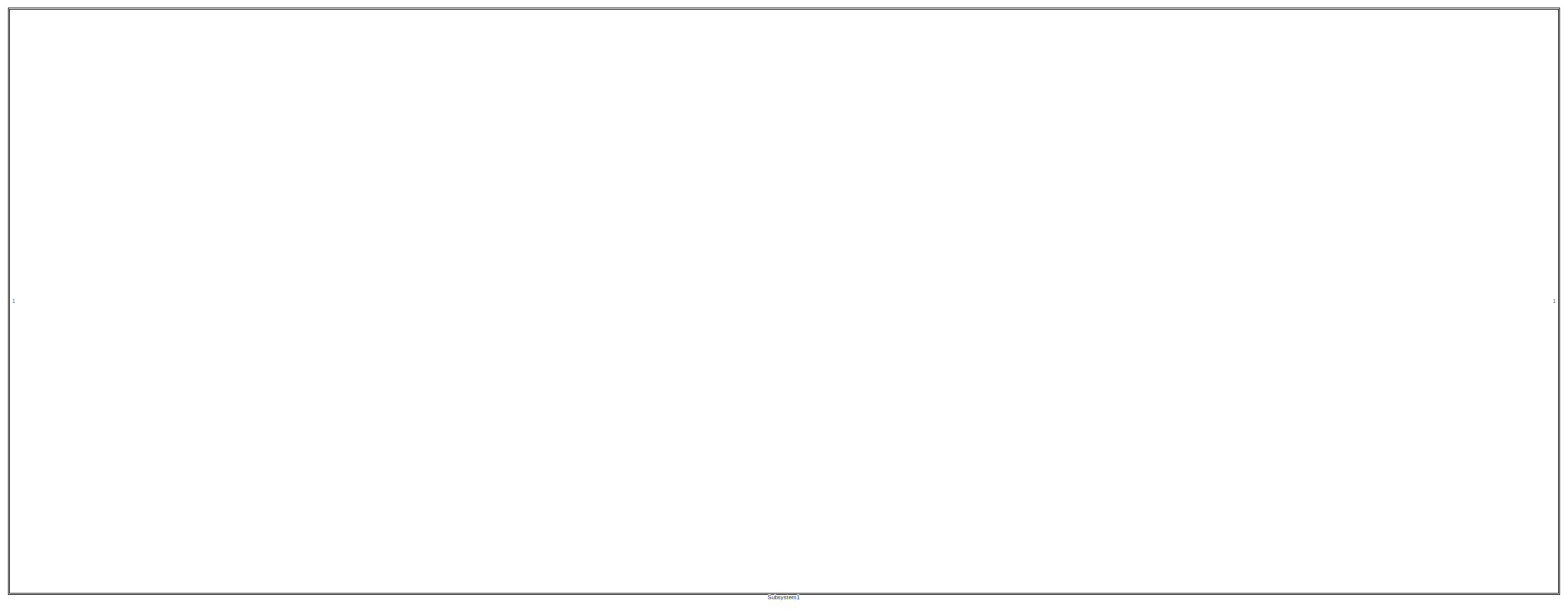
[diagram: root canvas - part 1/1, most of the canvas]
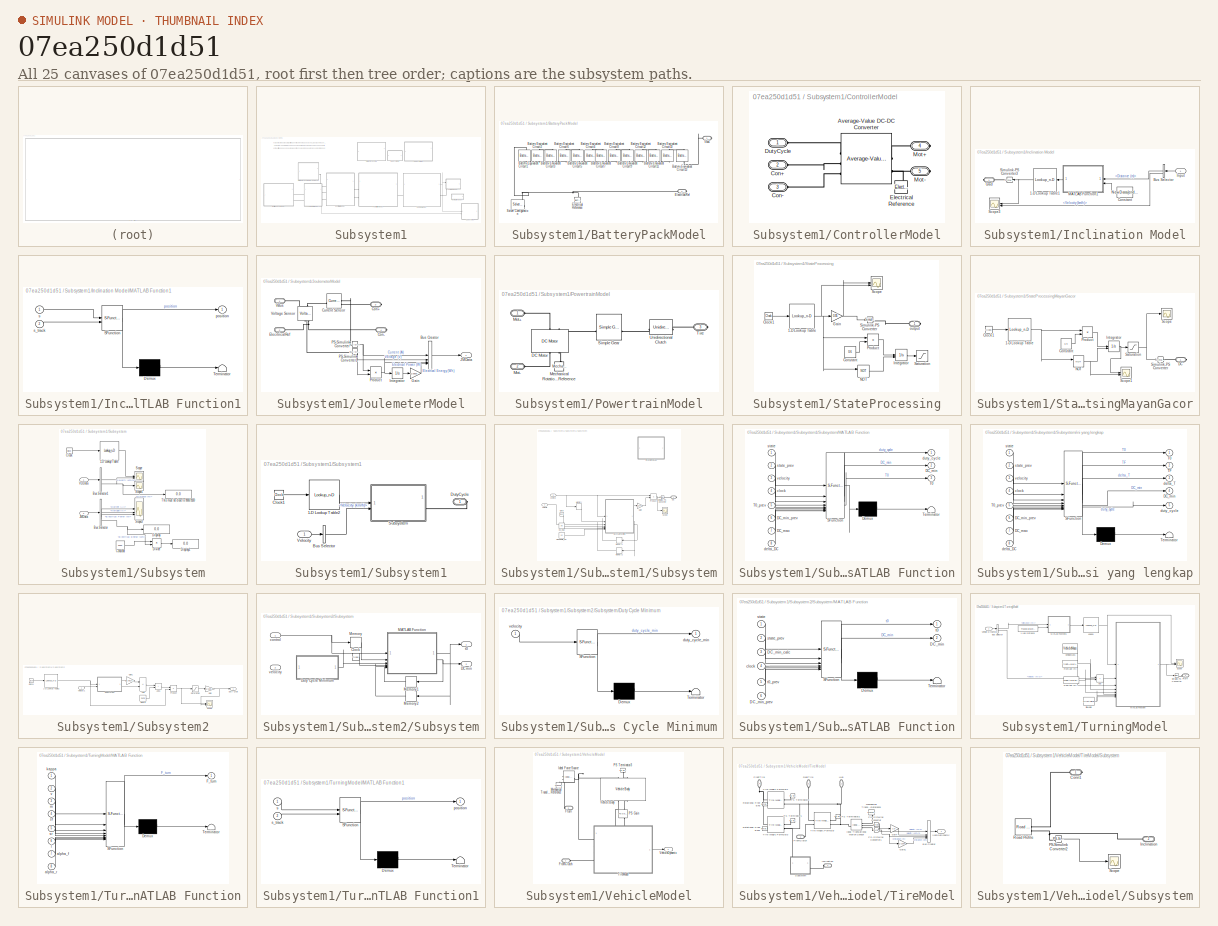
[diagram: thumbnail index - all 25 canvases of the model, root first then tree order]
MODEL slx_07ea250d1d51
KIND model
CONFIG AbsTol = auto
CONFIG EnableMultiTasking = off
CONFIG FixedStep = auto
CONFIG MaxStep = 0.1
CONFIG MinStep = auto
CONFIG RelTol = 1e-3
CONFIG SampleTimeConstraint = Unconstrained
CONFIG SolverName = ode23t
CONFIG StartTime = 0.0
CONFIG StopTime = finalatt{end,1}
BLOCK [SubSystem] Subsystem1
BLOCK [SubSystem] Subsystem1/BatteryPackModel
BLOCK [Reference] Subsystem1/BatteryPackModel/Battery Equivalent Circuit1  REF=batt_lib/Cells/Battery Equivalent
Circuit
  AttributesFormatString = Molicel:INR_21700_P45B
  NameLocation = left
  SourceBlock = batt_lib/Cells/Battery Equivalent\nCircuit
  SourceType = Battery Equivalent\nCircuit
  Tag = {'toolbox/physmod/battery/library/m/batt_lib_parts';'Cells/Battery_Equivalent_Circuit/Molicel/INR_21700_P45B.xml'}
BLOCK [Reference] Subsystem1/BatteryPackModel/Battery Equivalent Circuit10  REF=batt_lib/Cells/Battery Equivalent
Circuit
  AttributesFormatString = Molicel:INR_21700_P45B
  NameLocation = right
  SourceBlock = batt_lib/Cells/Battery Equivalent\nCircuit
  SourceType = Battery Equivalent\nCircuit
  Tag = {'toolbox/physmod/battery/library/m/batt_lib_parts';'Cells/Battery_Equivalent_Circuit/Molicel/INR_21700_P45B.xml'}
BLOCK [Reference] Subsystem1/BatteryPackModel/Battery Equivalent Circuit11  REF=batt_lib/Cells/Battery Equivalent
Circuit
  AttributesFormatString = Molicel:INR_21700_P45B
  NameLocation = left
  SourceBlock = batt_lib/Cells/Battery Equivalent\nCircuit
  SourceType = Battery Equivalent\nCircuit
  Tag = {'toolbox/physmod/battery/library/m/batt_lib_parts';'Cells/Battery_Equivalent_Circuit/Molicel/INR_21700_P45B.xml'}
BLOCK [Reference] Subsystem1/BatteryPackModel/Battery Equivalent Circuit12  REF=batt_lib/Cells/Battery Equivalent
Circuit
  AttributesFormatString = Molicel:INR_21700_P45B
  NameLocation = right
  SourceBlock = batt_lib/Cells/Battery Equivalent\nCircuit
  SourceType = Battery Equivalent\nCircuit
  Tag = {'toolbox/physmod/battery/library/m/batt_lib_parts';'Cells/Battery_Equivalent_Circuit/Molicel/INR_21700_P45B.xml'}
BLOCK [Reference] Subsystem1/BatteryPackModel/Battery Equivalent Circuit13  REF=batt_lib/Cells/Battery Equivalent
Circuit
  AttributesFormatString = Molicel:INR_21700_P45B
  NameLocation = left
  SourceBlock = batt_lib/Cells/Battery Equivalent\nCircuit
  SourceType = Battery Equivalent\nCircuit
  Tag = {'toolbox/physmod/battery/library/m/batt_lib_parts';'Cells/Battery_Equivalent_Circuit/Molicel/INR_21700_P45B.xml'}
BLOCK [Reference] Subsystem1/BatteryPackModel/Battery Equivalent Circuit2  REF=batt_lib/Cells/Battery Equivalent
Circuit
  AttributesFormatString = Molicel:INR_21700_P45B
  NameLocation = right
  SourceBlock = batt_lib/Cells/Battery Equivalent\nCircuit
  SourceType = Battery Equivalent\nCircuit
  Tag = {'toolbox/physmod/battery/library/m/batt_lib_parts';'Cells/Battery_Equivalent_Circuit/Molicel/INR_21700_P45B.xml'}
BLOCK [Reference] Subsystem1/BatteryPackModel/Battery Equivalent Circuit3  REF=batt_lib/Cells/Battery Equivalent
Circuit
  AttributesFormatString = Molicel:INR_21700_P45B
  NameLocation = left
  SourceBlock = batt_lib/Cells/Battery Equivalent\nCircuit
  SourceType = Battery Equivalent\nCircuit
  Tag = {'toolbox/physmod/battery/library/m/batt_lib_parts';'Cells/Battery_Equivalent_Circuit/Molicel/INR_21700_P45B.xml'}
BLOCK [Reference] Subsystem1/BatteryPackModel/Battery Equivalent Circuit4  REF=batt_lib/Cells/Battery Equivalent
Circuit
  AttributesFormatString = Molicel:INR_21700_P45B
  NameLocation = right
  SourceBlock = batt_lib/Cells/Battery Equivalent\nCircuit
  SourceType = Battery Equivalent\nCircuit
  Tag = {'toolbox/physmod/battery/library/m/batt_lib_parts';'Cells/Battery_Equivalent_Circuit/Molicel/INR_21700_P45B.xml'}
BLOCK [Reference] Subsystem1/BatteryPackModel/Battery Equivalent Circuit5  REF=batt_lib/Cells/Battery Equivalent
Circuit
  AttributesFormatString = Molicel:INR_21700_P45B
  NameLocation = left
  SourceBlock = batt_lib/Cells/Battery Equivalent\nCircuit
  SourceType = Battery Equivalent\nCircuit
  Tag = {'toolbox/physmod/battery/library/m/batt_lib_parts';'Cells/Battery_Equivalent_Circuit/Molicel/INR_21700_P45B.xml'}
BLOCK [Reference] Subsystem1/BatteryPackModel/Battery Equivalent Circuit6  REF=batt_lib/Cells/Battery Equivalent
Circuit
  AttributesFormatString = Molicel:INR_21700_P45B
  NameLocation = right
  SourceBlock = batt_lib/Cells/Battery Equivalent\nCircuit
  SourceType = Battery Equivalent\nCircuit
  Tag = {'toolbox/physmod/battery/library/m/batt_lib_parts';'Cells/Battery_Equivalent_Circuit/Molicel/INR_21700_P45B.xml'}
BLOCK [Reference] Subsystem1/BatteryPackModel/Battery Equivalent Circuit7  REF=batt_lib/Cells/Battery Equivalent
Circuit
  AttributesFormatString = Molicel:INR_21700_P45B
  NameLocation = left
  SourceBlock = batt_lib/Cells/Battery Equivalent\nCircuit
  SourceType = Battery Equivalent\nCircuit
  Tag = {'toolbox/physmod/battery/library/m/batt_lib_parts';'Cells/Battery_Equivalent_Circuit/Molicel/INR_21700_P45B.xml'}
BLOCK [Reference] Subsystem1/BatteryPackModel/Battery Equivalent Circuit8  REF=batt_lib/Cells/Battery Equivalent
Circuit
  AttributesFormatString = Molicel:INR_21700_P45B
  NameLocation = right
  SourceBlock = batt_lib/Cells/Battery Equivalent\nCircuit
  SourceType = Battery Equivalent\nCircuit
  Tag = {'toolbox/physmod/battery/library/m/batt_lib_parts';'Cells/Battery_Equivalent_Circuit/Molicel/INR_21700_P45B.xml'}
BLOCK [Reference] Subsystem1/BatteryPackModel/Battery Equivalent Circuit9  REF=batt_lib/Cells/Battery Equivalent
Circuit
  AttributesFormatString = Molicel:INR_21700_P45B
  NameLocation = left
  SourceBlock = batt_lib/Cells/Battery Equivalent\nCircuit
  SourceType = Battery Equivalent\nCircuit
  Tag = {'toolbox/physmod/battery/library/m/batt_lib_parts';'Cells/Battery_Equivalent_Circuit/Molicel/INR_21700_P45B.xml'}
BLOCK [Reference] Subsystem1/BatteryPackModel/Electrical Reference  REF=fl_lib/Electrical/Electrical Elements/Electrical Reference
  NameLocation = right
  SourceBlock = fl_lib/Electrical/Electrical Elements/Electrical Reference
  SourceType = Electrical Reference
BLOCK [PMIOPort] Subsystem1/BatteryPackModel/ElectricalRef
  Port = 2
  Side = Right
BLOCK [Reference] Subsystem1/BatteryPackModel/Solver Configuration  REF=nesl_utility/Solver
Configuration
  SourceBlock = nesl_utility/Solver\nConfiguration
  SourceType = Solver\nConfiguration
BLOCK [PMIOPort] Subsystem1/BatteryPackModel/Vbus
  NameLocation = top
  Side = Right
BLOCK [SubSystem] Subsystem1/ControllerModel
BLOCK [Reference] Subsystem1/ControllerModel/Average-Value DC-DC Converter  REF=ee_lib/Semiconductors &
Converters/Converters/Average-Value DC-DC
Converter
  SourceBlock = ee_lib/Semiconductors &\nConverters/Converters/Average-Value DC-DC\nConverter
  SourceType = Average-Value DC-DC\nConverter
BLOCK [PMIOPort] Subsystem1/ControllerModel/Con+
  Port = 2
  Side = Left
BLOCK [PMIOPort] Subsystem1/ControllerModel/Con-
  Port = 3
  Side = Left
BLOCK [PMIOPort] Subsystem1/ControllerModel/DutyCycle
  Side = Left
BLOCK [Reference] Subsystem1/ControllerModel/Electrical Reference  REF=fl_lib/Electrical/Electrical Elements/Electrical Reference
  NameLocation = right
  SourceBlock = fl_lib/Electrical/Electrical Elements/Electrical Reference
  SourceType = Electrical Reference
BLOCK [PMIOPort] Subsystem1/ControllerModel/Mot+
  Port = 4
  Side = Right
BLOCK [PMIOPort] Subsystem1/ControllerModel/Mot-
  Port = 5
  Side = Right
BLOCK [SubSystem] Subsystem1/Inclination Model
  Commented = on
  NameLocation = top
  PortSchema = {"entries":[{"content":{"sides":[{"content":{},"type":"ConnectorPlacement.EquallySpacedRectSide","uuid":"136e15b9-992d-4bd3-9ecd-22bc584851ec"},{"content":{"connectorIds":["RConn1","In1"],"side":"RIGHT"},"type":"ConnectorPlacement.EquallySpacedRectSide","uuid":"21901198-73a1-4f2b-bd2a-55a4ec918fc9"},{"content":{"side":"TOP"},"type":"ConnectorPlacement.EquallySpacedRectSide","uuid":"96b62914-b1ee-4...<+208ch>
BLOCK [Lookup_n-D] Subsystem1/Inclination Model/1-D Lookup Table1
  BreakpointsForDimension1 = NewData{:,1}
  InputPortMap = u0
  InternalRulePriority = Speed
  NameLocation = top
  NumberOfTableDimensions = 1
  RndMeth = Simplest
  Table = NewData{:,2}
BLOCK [BusSelector] Subsystem1/Inclination Model/Bus Selector
  NameLocation = top
  OutputSignals = Distance (m),Velocity (km/h)
BLOCK [Constant] Subsystem1/Inclination Model/Constant
  NameLocation = top
  Value = NewData{end,1}
BLOCK [PMIOPort] Subsystem1/Inclination Model/Grad
  Side = Right
BLOCK [Inport] Subsystem1/Inclination Model/Input
  NameLocation = top
BLOCK [SubSystem] Subsystem1/Inclination Model/MATLAB Function1
  ErrorFcn = Stateflow.Translate.translate
  NameLocation = top
  PermitHierarchicalResolution = ExplicitOnly
  SFBlockType = MATLAB Function
  TreatAsAtomicUnit = on
BLOCK [Demux] Subsystem1/Inclination Model/MATLAB Function1/ Demux 
  Outputs = 1
BLOCK [S-Function] Subsystem1/Inclination Model/MATLAB Function1/ SFunction 
  EnableBusSupport = on
  FunctionName = sf_sfun
  PortCounts = [2 2]
  SFcnIsStateOwnerBlock = off
  SFunctionDeploymentMode = off
  Tag = Stateflow S-Function 5
BLOCK [Terminator] Subsystem1/Inclination Model/MATLAB Function1/ Terminator 
BLOCK [Outport] Subsystem1/Inclination Model/MATLAB Function1/position
BLOCK [Inport] Subsystem1/Inclination Model/MATLAB Function1/s
BLOCK [Inport] Subsystem1/Inclination Model/MATLAB Function1/s_track
  Port = 2
BLOCK [Scope] Subsystem1/Inclination Model/Scope3
  Floating = off
  NameLocation = top
  NumInputPorts = 2
  ScopeSpecificationString = Simulink.scopes.TimeScopeBlockCfg('CurrentConfiguration', extmgr.ConfigurationSet(extmgr.Configuration('Core','General UI',true),extmgr.Configuration('Core','Source UI',true),extmgr.Configuration('Sources','WiredSimulink',true,'DataLoggingVariableName','ScopeData1'),extmgr.Configuration('Visuals','Time Domain',true,'SerializedDisplays',{struct('MinYLimReal','-0.01432','MaxYLimReal','0.01089','YLab...<+2594ch>
BLOCK [Reference] Subsystem1/Inclination Model/Simulink-PS Converter3  REF=nesl_utility/Simulink-PS
Converter
  NameLocation = top
  SourceBlock = nesl_utility/Simulink-PS\nConverter
  SourceType = Simulink-PS\nConverter
BLOCK [SubSystem] Subsystem1/JoulemeterModel
  PortSchema = {"entries":[{"content":{"sides":[{"content":{"connectorIds":["LConn1","LConn2"]},"type":"ConnectorPlacement.EquallySpacedRectSide","uuid":"5b7f183a-bf7a-4999-b582-2617b2cbf3b5"},{"content":{"connectorIds":["RConn1","RConn2"],"side":"RIGHT"},"type":"ConnectorPlacement.EquallySpacedRectSide","uuid":"60e6a297-a548-4f80-bd0a-fa1cc363ffaf"},{"content":{"side":"TOP"},"type":"ConnectorPlacement.EquallySp...<+395ch>
BLOCK [BusCreator] Subsystem1/JoulemeterModel/Bus Creator
  DisplayOption = bar
  InheritFromInputs = on
  Inputs = 4
BLOCK [PMIOPort] Subsystem1/JoulemeterModel/Con+
  NameLocation = top
  Port = 3
  Side = Right
BLOCK [PMIOPort] Subsystem1/JoulemeterModel/Con-
  NameLocation = top
  Port = 4
  Side = Right
BLOCK [Reference] Subsystem1/JoulemeterModel/Current Sensor  REF=fl_lib/Electrical/Electrical Sensors/Current Sensor
  SourceBlock = fl_lib/Electrical/Electrical Sensors/Current Sensor
  SourceType = Current Sensor
BLOCK [PMIOPort] Subsystem1/JoulemeterModel/ElecrtricalRef
  Port = 2
  Side = Left
BLOCK [Gain] Subsystem1/JoulemeterModel/Gain
  Gain = 1/3600
BLOCK [Integrator] Subsystem1/JoulemeterModel/Integrator
BLOCK [Outport] Subsystem1/JoulemeterModel/JMData
BLOCK [Reference] Subsystem1/JoulemeterModel/PS-Simulink Converter  REF=nesl_utility/PS-Simulink
Converter
  SourceBlock = nesl_utility/PS-Simulink\nConverter
  SourceType = PS-Simulink\nConverter
BLOCK [Reference] Subsystem1/JoulemeterModel/PS-Simulink Converter1  REF=nesl_utility/PS-Simulink
Converter
  SourceBlock = nesl_utility/PS-Simulink\nConverter
  SourceType = PS-Simulink\nConverter
BLOCK [Product] Subsystem1/JoulemeterModel/Product
BLOCK [PMIOPort] Subsystem1/JoulemeterModel/VBus
  Side = Left
BLOCK [Reference] Subsystem1/JoulemeterModel/Voltage Sensor  REF=fl_lib/Electrical/Electrical Sensors/Voltage Sensor
  NameLocation = right
  SourceBlock = fl_lib/Electrical/Electrical Sensors/Voltage Sensor
  SourceType = Voltage Sensor
BLOCK [SubSystem] Subsystem1/PowertrainModel
BLOCK [Reference] Subsystem1/PowertrainModel/DC Motor  REF=ee_lib/Electromechanical/Brushed Motors/DC Motor
  AttributesFormatString = Maxon:RE_65_388987_48
  NameLocation = right
  SourceBlock = ee_lib/Electromechanical/Brushed Motors/DC Motor
  SourceType = DC Motor
  Tag = {'toolbox/physmod/elec/library/m/ee_lib_parts';'Electromechanical/Brushed_Motors/DC_Motor/Maxon/RE_65_388987_48.xml'}
BLOCK [Reference] Subsystem1/PowertrainModel/Mechanical Rotational Reference  REF=fl_lib/Mechanical/Rotational Elements/Mechanical
Rotational Reference
  NameLocation = right
  SourceBlock = fl_lib/Mechanical/Rotational Elements/Mechanical\nRotational Reference
  SourceType = Mechanical\nRotational Reference
BLOCK [PMIOPort] Subsystem1/PowertrainModel/Mot+
  Side = Left
BLOCK [PMIOPort] Subsystem1/PowertrainModel/Mot-
  NameLocation = top
  Port = 2
  Side = Left
BLOCK [Reference] Subsystem1/PowertrainModel/Simple Gear  REF=sdl_lib/Gears/Simple Gear
  SourceBlock = sdl_lib/Gears/Simple Gear
  SourceType = Simple Gear
BLOCK [PMIOPort] Subsystem1/PowertrainModel/Tire
  Port = 3
  Side = Right
BLOCK [Reference] Subsystem1/PowertrainModel/Unidirectional Clutch  REF=sdl_lib/Clutches/Unidirectional
Clutch
  SourceBlock = sdl_lib/Clutches/Unidirectional\nClutch
  SourceType = Unidirectional\nClutch
BLOCK [SubSystem] Subsystem1/StateProcessing
  Commented = on
BLOCK [Lookup_n-D] Subsystem1/StateProcessing/1-D Lookup Table
  BreakpointsForDimension1 = finalatt{:,1}
  IndexSearchMethod = Linear search
  InputPortMap = u0
  InternalRulePriority = Speed
  InterpMethod = Flat
  NumberOfTableDimensions = 1
  RndMeth = Simplest
  Table = finalatt{:,3}
BLOCK [Clock] Subsystem1/StateProcessing/Clock1
  Decimation = 1
BLOCK [Constant] Subsystem1/StateProcessing/Constant
  Value = 0.6
BLOCK [Gain] Subsystem1/StateProcessing/Gain
  Gain = 0.95
BLOCK [Integrator] Subsystem1/StateProcessing/Integrator
  ExternalReset = rising
BLOCK [Logic] Subsystem1/StateProcessing/NOT
  AllPortsSameDT = off
  IconShape = distinctive
  Operator = NOT
  OutDataTypeStr = boolean
BLOCK [Product] Subsystem1/StateProcessing/Product
BLOCK [Saturate] Subsystem1/StateProcessing/Saturation
  LowerLimit = 0
  UpperLimit = 0.95
BLOCK [Scope] Subsystem1/StateProcessing/Scope
  Floating = off
  NumInputPorts = 2
  ScopeSpecificationString = Simulink.scopes.TimeScopeBlockCfg('CurrentConfiguration', extmgr.ConfigurationSet(extmgr.Configuration('Core','General UI',true),extmgr.Configuration('Core','Source UI',true),extmgr.Configuration('Sources','WiredSimulink',true,'DataLoggingVariableName','ScopeData1'),extmgr.Configuration('Visuals','Time Domain',true,'SerializedDisplays',{struct('MinYLimReal','-0.08548','MaxYLimReal','0.95307','YLab...<+2261ch>
BLOCK [Reference] Subsystem1/StateProcessing/Simulink-PS Converter  REF=nesl_utility/Simulink-PS
Converter
  SourceBlock = nesl_utility/Simulink-PS\nConverter
  SourceType = Simulink-PS\nConverter
BLOCK [PMIOPort] Subsystem1/StateProcessing/output
  Side = Right
BLOCK [SubSystem] Subsystem1/StateProcessingMayanGacor
BLOCK [Lookup_n-D] Subsystem1/StateProcessingMayanGacor/1-D Lookup Table
  BreakpointsForDimension1 = finalatt{:,1}
  IndexSearchMethod = Linear search
  InputPortMap = u0
  InternalRulePriority = Speed
  InterpMethod = Flat
  NumberOfTableDimensions = 1
  RndMeth = Simplest
  Table = finalatt{:,3}
BLOCK [Clock] Subsystem1/StateProcessingMayanGacor/Clock1
  Decimation = 1
BLOCK [Constant] Subsystem1/StateProcessingMayanGacor/Constant
  Value = 0.9
BLOCK [PMIOPort] Subsystem1/StateProcessingMayanGacor/DC
  NameLocation = top
  Side = Right
BLOCK [Integrator] Subsystem1/StateProcessingMayanGacor/Integrator
  ExternalReset = rising
BLOCK [Logic] Subsystem1/StateProcessingMayanGacor/NOT
  AllPortsSameDT = off
  IconShape = distinctive
  Operator = NOT
  OutDataTypeStr = boolean
BLOCK [Product] Subsystem1/StateProcessingMayanGacor/Product
BLOCK [Saturate] Subsystem1/StateProcessingMayanGacor/Saturation
  LowerLimit = 0
  UpperLimit = 0.95
BLOCK [Scope] Subsystem1/StateProcessingMayanGacor/Scope
  Floating = off
  NumInputPorts = 1
  ScopeSpecificationString = Simulink.scopes.TimeScopeBlockCfg('CurrentConfiguration', extmgr.ConfigurationSet(extmgr.Configuration('Core','General UI',true),extmgr.Configuration('Core','Source UI',true),extmgr.Configuration('Sources','WiredSimulink',true,'DataLoggingVariableName','ScopeData1'),extmgr.Configuration('Visuals','Time Domain',true,'SerializedDisplays',{struct('MinYLimReal','-0.11875','MaxYLimReal','0.96274','YLab...<+1502ch>
BLOCK [Scope] Subsystem1/StateProcessingMayanGacor/Scope1
  Floating = off
  NumInputPorts = 2
  ScopeSpecificationString = Simulink.scopes.TimeScopeBlockCfg('CurrentConfiguration', extmgr.ConfigurationSet(extmgr.Configuration('Core','General UI',true),extmgr.Configuration('Core','Source UI',true),extmgr.Configuration('Sources','WiredSimulink',true,'DataLoggingVariableName','ScopeData2'),extmgr.Configuration('Visuals','Time Domain',true,'SerializedDisplays',{struct('MinYLimReal','-0.18036','MaxYLimReal','2.69916','YLab...<+2254ch>
BLOCK [Reference] Subsystem1/StateProcessingMayanGacor/Simulink-PS Converter  REF=nesl_utility/Simulink-PS
Converter
  SourceBlock = nesl_utility/Simulink-PS\nConverter
  SourceType = Simulink-PS\nConverter
BLOCK [SubSystem] Subsystem1/Subsystem
BLOCK [Lookup_n-D] Subsystem1/Subsystem/1-D Lookup Table
  BreakpointsForDimension1 = finalatt{:,1}
  InputPortMap = u0
  InternalRulePriority = Speed
  NumberOfTableDimensions = 1
  RndMeth = Simplest
  Table = finalatt{:,2}
BLOCK [BusSelector] Subsystem1/Subsystem/Bus Selector
  OutputSignals = Current (A),Voltage (V),Electrical Power (W),Electrical Energy (Wh)
BLOCK [BusSelector] Subsystem1/Subsystem/Bus Selector1
  OutputSignals = Velocity (km/h),Distance (m)
BLOCK [Clock] Subsystem1/Subsystem/Clock
BLOCK [Constant] Subsystem1/Subsystem/Constant
  Value = 9300
BLOCK [Display] Subsystem1/Subsystem/Display
  Decimation = 1
BLOCK [Display] Subsystem1/Subsystem/Display1
  Decimation = 1
BLOCK [Product] Subsystem1/Subsystem/Divide
  Inputs = */
BLOCK [Inport] Subsystem1/Subsystem/JMData
  Port = 2
BLOCK [Scope] Subsystem1/Subsystem/Scope
  Floating = off
  NumInputPorts = 2
  ScopeSpecificationString = Simulink.scopes.TimeScopeBlockCfg('CurrentConfiguration', extmgr.ConfigurationSet(extmgr.Configuration('Core','General UI',true),extmgr.Configuration('Core','Source UI',true),extmgr.Configuration('Sources','WiredSimulink',true),extmgr.Configuration('Visuals','Time Domain',true,'SerializedDisplays',{struct('MinYLimReal','-3.62463','MaxYLimReal','32.62165','YLabelReal','','MinYLimMag','0.00000','Max...<+1952ch>
BLOCK [Scope] Subsystem1/Subsystem/Scope1
  Floating = off
  NumInputPorts = 1
  ScopeSpecificationString = Simulink.scopes.TimeScopeBlockCfg('CurrentConfiguration', extmgr.ConfigurationSet(extmgr.Configuration('Core','General UI',true),extmgr.Configuration('Core','Source UI',true),extmgr.Configuration('Sources','WiredSimulink',true,'DataLoggingVariableName','ScopeData1'),extmgr.Configuration('Visuals','Time Domain',true,'SerializedDisplays',{struct('MinYLimReal','-1132.24377','MaxYLimReal','10190.19393...<+1825ch>
BLOCK [Scope] Subsystem1/Subsystem/Scope3
  Floating = off
  NumInputPorts = 3
  ScopeSpecificationString = Simulink.scopes.TimeScopeBlockCfg('CurrentConfiguration', extmgr.ConfigurationSet(extmgr.Configuration('Core','General UI',true),extmgr.Configuration('Core','Source UI',true),extmgr.Configuration('Sources','WiredSimulink',true,'DataLoggingVariableName','ScopeData3'),extmgr.Configuration('Visuals','Time Domain',true,'SerializedDisplays',{struct('MinYLimReal','-12.2278','MaxYLimReal','42.43005','YLa...<+3428ch>
BLOCK [Display] Subsystem1/Subsystem/This must be close to 9000-9100
  Decimation = 1
BLOCK [Inport] Subsystem1/Subsystem/VDData
BLOCK [SubSystem] Subsystem1/Subsystem1
  Commented = on
BLOCK [Lookup_n-D] Subsystem1/Subsystem1/1-D Lookup Table2
  BreakpointsForDimension1 = finalatt{:,1}
  InputPortMap = u0
  InternalRulePriority = Speed
  InterpMethod = Flat
  NumberOfTableDimensions = 1
  RndMeth = Simplest
  Table = finalatt{:,3}
BLOCK [BusSelector] Subsystem1/Subsystem1/Bus Selector
  OutputSignals = Velocity (km/h)
BLOCK [Clock] Subsystem1/Subsystem1/Clock1
BLOCK [PMIOPort] Subsystem1/Subsystem1/DutyCycle
  NameLocation = top
  Side = Right
BLOCK [SubSystem] Subsystem1/Subsystem1/Subsystem
BLOCK [Clock] Subsystem1/Subsystem1/Subsystem/Clock
BLOCK [PMIOPort] Subsystem1/Subsystem1/Subsystem/DC
  NameLocation = top
  Side = Right
BLOCK [Constant] Subsystem1/Subsystem1/Subsystem/DC_max
  Value = 95
BLOCK [Gain] Subsystem1/Subsystem1/Subsystem/Gain
  Gain = 1/100
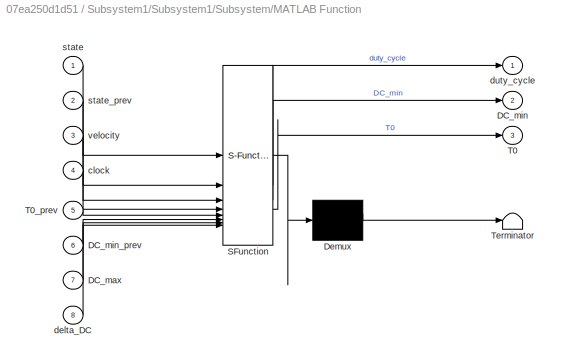
BLOCK [SubSystem] Subsystem1/Subsystem1/Subsystem/MATLAB Function
  ErrorFcn = Stateflow.Translate.translate
  PermitHierarchicalResolution = ExplicitOnly
  SFBlockType = MATLAB Function
  TreatAsAtomicUnit = on
BLOCK [Demux] Subsystem1/Subsystem1/Subsystem/MATLAB Function/ Demux 
  Outputs = 1
BLOCK [S-Function] Subsystem1/Subsystem1/Subsystem/MATLAB Function/ SFunction 
  EnableBusSupport = on
  FunctionName = sf_sfun
  PortCounts = [8 4]
  SFcnIsStateOwnerBlock = off
  SFunctionDeploymentMode = off
  Tag = Stateflow S-Function 3
BLOCK [Terminator] Subsystem1/Subsystem1/Subsystem/MATLAB Function/ Terminator 
BLOCK [Inport] Subsystem1/Subsystem1/Subsystem/MATLAB Function/DC_max
  Port = 7
BLOCK [Outport] Subsystem1/Subsystem1/Subsystem/MATLAB Function/DC_min
  Port = 2
BLOCK [Inport] Subsystem1/Subsystem1/Subsystem/MATLAB Function/DC_min_prev
  Port = 6
BLOCK [Outport] Subsystem1/Subsystem1/Subsystem/MATLAB Function/T0
  Port = 3
BLOCK [Inport] Subsystem1/Subsystem1/Subsystem/MATLAB Function/T0_prev
  Port = 5
BLOCK [Inport] Subsystem1/Subsystem1/Subsystem/MATLAB Function/clock
  Port = 4
BLOCK [Inport] Subsystem1/Subsystem1/Subsystem/MATLAB Function/delta_DC
  Port = 8
BLOCK [Outport] Subsystem1/Subsystem1/Subsystem/MATLAB Function/duty_cycle
BLOCK [Inport] Subsystem1/Subsystem1/Subsystem/MATLAB Function/state
BLOCK [Inport] Subsystem1/Subsystem1/Subsystem/MATLAB Function/state_prev
  Port = 2
BLOCK [Inport] Subsystem1/Subsystem1/Subsystem/MATLAB Function/velocity
  Port = 3
BLOCK [Memory] Subsystem1/Subsystem1/Subsystem/Memory
BLOCK [Memory] Subsystem1/Subsystem1/Subsystem/Memory1
  NameLocation = top
BLOCK [Memory] Subsystem1/Subsystem1/Subsystem/Memory2
  NameLocation = top
BLOCK [Product] Subsystem1/Subsystem1/Subsystem/Product
BLOCK [Scope] Subsystem1/Subsystem1/Subsystem/Scope
  Floating = off
  NumInputPorts = 1
  ScopeSpecificationString = Simulink.scopes.TimeScopeBlockCfg('CurrentConfiguration', extmgr.ConfigurationSet(extmgr.Configuration('Core','General UI',true),extmgr.Configuration('Core','Source UI',true),extmgr.Configuration('Sources','WiredSimulink',true,'DataLoggingVariableName','ScopeData2'),extmgr.Configuration('Visuals','Time Domain',true,'SerializedDisplays',{struct('MinYLimReal','-0.11875','MaxYLimReal','1.06875','YLab...<+1526ch>
BLOCK [Reference] Subsystem1/Subsystem1/Subsystem/Simulink-PS Converter  REF=nesl_utility/Simulink-PS
Converter
  SourceBlock = nesl_utility/Simulink-PS\nConverter
  SourceType = Simulink-PS\nConverter
BLOCK [Constant] Subsystem1/Subsystem1/Subsystem/Slope//Delta_DC
  Value = 60
BLOCK [Inport] Subsystem1/Subsystem1/Subsystem/control
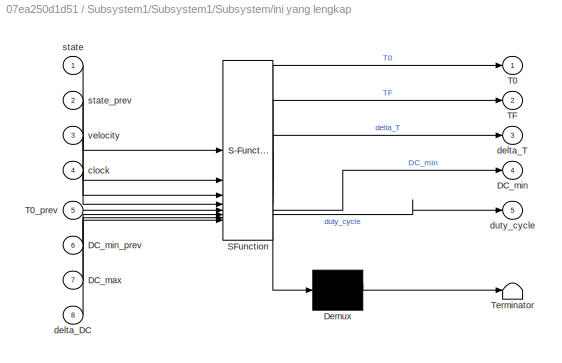
BLOCK [SubSystem] Subsystem1/Subsystem1/Subsystem/ini yang lengkap
  Commented = on
  ErrorFcn = Stateflow.Translate.translate
  PermitHierarchicalResolution = ExplicitOnly
  SFBlockType = MATLAB Function
  TreatAsAtomicUnit = on
BLOCK [Demux] Subsystem1/Subsystem1/Subsystem/ini yang lengkap/ Demux 
  Outputs = 1
BLOCK [S-Function] Subsystem1/Subsystem1/Subsystem/ini yang lengkap/ SFunction 
  EnableBusSupport = on
  FunctionName = sf_sfun
  PortCounts = [8 6]
  SFcnIsStateOwnerBlock = off
  SFunctionDeploymentMode = off
  Tag = Stateflow S-Function 4
BLOCK [Terminator] Subsystem1/Subsystem1/Subsystem/ini yang lengkap/ Terminator 
BLOCK [Inport] Subsystem1/Subsystem1/Subsystem/ini yang lengkap/DC_max
  Port = 7
BLOCK [Outport] Subsystem1/Subsystem1/Subsystem/ini yang lengkap/DC_min
  Port = 4
BLOCK [Inport] Subsystem1/Subsystem1/Subsystem/ini yang lengkap/DC_min_prev
  Port = 6
BLOCK [Outport] Subsystem1/Subsystem1/Subsystem/ini yang lengkap/T0
BLOCK [Inport] Subsystem1/Subsystem1/Subsystem/ini yang lengkap/T0_prev
  Port = 5
BLOCK [Outport] Subsystem1/Subsystem1/Subsystem/ini yang lengkap/TF
  Port = 2
BLOCK [Inport] Subsystem1/Subsystem1/Subsystem/ini yang lengkap/clock
  Port = 4
BLOCK [Inport] Subsystem1/Subsystem1/Subsystem/ini yang lengkap/delta_DC
  Port = 8
BLOCK [Outport] Subsystem1/Subsystem1/Subsystem/ini yang lengkap/delta_T
  Port = 3
BLOCK [Outport] Subsystem1/Subsystem1/Subsystem/ini yang lengkap/duty_cycle
  Port = 5
BLOCK [Inport] Subsystem1/Subsystem1/Subsystem/ini yang lengkap/state
BLOCK [Inport] Subsystem1/Subsystem1/Subsystem/ini yang lengkap/state_prev
  Port = 2
BLOCK [Inport] Subsystem1/Subsystem1/Subsystem/ini yang lengkap/velocity
  Port = 3
BLOCK [Inport] Subsystem1/Subsystem1/Subsystem/velocity
  Port = 2
BLOCK [Inport] Subsystem1/Subsystem1/Velocity
BLOCK [SubSystem] Subsystem1/Subsystem2
  Commented = on
  NameLocation = left
BLOCK [Lookup_n-D] Subsystem1/Subsystem2/1-D Lookup Table2
  BreakpointsForDimension1 = finalatt{:,1}
  InputPortMap = u0
  InternalRulePriority = Speed
  InterpMethod = Flat
  NumberOfTableDimensions = 1
  RndMeth = Simplest
  Table = finalatt{:,3}
BLOCK [Sum] Subsystem1/Subsystem2/Add
  IconShape = rectangular
  Inputs = -+
BLOCK [Sum] Subsystem1/Subsystem2/Add1
  IconShape = rectangular
BLOCK [Clock] Subsystem1/Subsystem2/Clock1
  Decimation = 1000
BLOCK [Outport] Subsystem1/Subsystem2/Duty Cycle
BLOCK [Gain] Subsystem1/Subsystem2/Gain
  Gain = 1/100
BLOCK [Gain] Subsystem1/Subsystem2/Gain1
  Gain = 60.6817134363255
BLOCK [Product] Subsystem1/Subsystem2/Product
BLOCK [Reference] Subsystem1/Subsystem2/Ramp  REF=simulink/Sources/Ramp
  SourceBlock = simulink/Sources/Ramp
  SourceType = Ramp
BLOCK [Saturate] Subsystem1/Subsystem2/Saturation
  LowerLimit = 0
  UpperLimit = 95
BLOCK [Scope] Subsystem1/Subsystem2/Scope
  Floating = off
  NumInputPorts = 2
  ScopeSpecificationString = Simulink.scopes.TimeScopeBlockCfg('CurrentConfiguration', extmgr.ConfigurationSet(extmgr.Configuration('Core','General UI',true),extmgr.Configuration('Core','Source UI',true),extmgr.Configuration('Sources','WiredSimulink',true,'DataLoggingVariableName','ScopeData1'),extmgr.Configuration('Visuals','Time Domain',true,'SerializedDisplays',{struct('MinYLimReal','-83.43736','MaxYLimReal','750.9362','YL...<+2594ch>
BLOCK [SubSystem] Subsystem1/Subsystem2/Subsystem
BLOCK [Clock] Subsystem1/Subsystem2/Subsystem/Clock
BLOCK [Outport] Subsystem1/Subsystem2/Subsystem/DC min
  Port = 2
BLOCK [SubSystem] Subsystem1/Subsystem2/Subsystem/Duty Cycle Minimum
  ErrorFcn = Stateflow.Translate.translate
  PermitHierarchicalResolution = ExplicitOnly
  SFBlockType = MATLAB Function
  TreatAsAtomicUnit = on
BLOCK [Demux] Subsystem1/Subsystem2/Subsystem/Duty Cycle Minimum/ Demux 
  Outputs = 1
BLOCK [S-Function] Subsystem1/Subsystem2/Subsystem/Duty Cycle Minimum/ SFunction 
  EnableBusSupport = on
  FunctionName = sf_sfun
  PortCounts = [1 2]
  SFcnIsStateOwnerBlock = off
  SFunctionDeploymentMode = off
  Tag = Stateflow S-Function 6
BLOCK [Terminator] Subsystem1/Subsystem2/Subsystem/Duty Cycle Minimum/ Terminator 
BLOCK [Outport] Subsystem1/Subsystem2/Subsystem/Duty Cycle Minimum/duty_cycle_min
BLOCK [Inport] Subsystem1/Subsystem2/Subsystem/Duty Cycle Minimum/velocity
BLOCK [SubSystem] Subsystem1/Subsystem2/Subsystem/MATLAB Function
  ErrorFcn = Stateflow.Translate.translate
  PermitHierarchicalResolution = ExplicitOnly
  SFBlockType = MATLAB Function
  TreatAsAtomicUnit = on
BLOCK [Demux] Subsystem1/Subsystem2/Subsystem/MATLAB Function/ Demux 
  Outputs = 1
BLOCK [S-Function] Subsystem1/Subsystem2/Subsystem/MATLAB Function/ SFunction 
  EnableBusSupport = on
  FunctionName = sf_sfun
  PortCounts = [6 3]
  SFcnIsStateOwnerBlock = off
  SFunctionDeploymentMode = off
  Tag = Stateflow S-Function 7
BLOCK [Terminator] Subsystem1/Subsystem2/Subsystem/MATLAB Function/ Terminator 
BLOCK [Outport] Subsystem1/Subsystem2/Subsystem/MATLAB Function/DC_min
  Port = 2
BLOCK [Inport] Subsystem1/Subsystem2/Subsystem/MATLAB Function/DC_min_calc
  Port = 3
BLOCK [Inport] Subsystem1/Subsystem2/Subsystem/MATLAB Function/DC_min_prev
  Port = 6
BLOCK [Inport] Subsystem1/Subsystem2/Subsystem/MATLAB Function/clock
  Port = 4
BLOCK [Inport] Subsystem1/Subsystem2/Subsystem/MATLAB Function/state
BLOCK [Inport] Subsystem1/Subsystem2/Subsystem/MATLAB Function/state_prev
  Port = 2
BLOCK [Outport] Subsystem1/Subsystem2/Subsystem/MATLAB Function/t0
BLOCK [Inport] Subsystem1/Subsystem2/Subsystem/MATLAB Function/t0_prev
  Port = 5
BLOCK [Memory] Subsystem1/Subsystem2/Subsystem/Memory
BLOCK [Memory] Subsystem1/Subsystem2/Subsystem/Memory1
  NameLocation = top
BLOCK [Memory] Subsystem1/Subsystem2/Subsystem/Memory2
  NameLocation = top
BLOCK [Inport] Subsystem1/Subsystem2/Subsystem/control
BLOCK [Outport] Subsystem1/Subsystem2/Subsystem/t0
BLOCK [Inport] Subsystem1/Subsystem2/Subsystem/velocity
  Port = 2
BLOCK [Inport] Subsystem1/Subsystem2/Velocity1
BLOCK [SubSystem] Subsystem1/TurningModel
  PortSchema = {"entries":[{"content":{"sides":[{"content":{"connectorIds":["LConn1","In1"]},"type":"ConnectorPlacement.EquallySpacedRectSide","uuid":"71e7bed3-e1e3-4832-b1c1-24de9e1463fb"},{"content":{"side":"RIGHT"},"type":"ConnectorPlacement.EquallySpacedRectSide","uuid":"85b25ef4-cea1-4d54-8b2c-2c7e7889f274"},{"content":{"side":"TOP"},"type":"ConnectorPlacement.EquallySpacedRectSide","uuid":"88c22c9a-8431-44...<+207ch>
BLOCK [Constant] Subsystem1/TurningModel/1 Lap Distance
  Value = TrackData{end,1}
BLOCK [Sum] Subsystem1/TurningModel/Add
  IconShape = rectangular
BLOCK [BusSelector] Subsystem1/TurningModel/Bus Selector
  OutputSignals = Distance (m),Velocity (m/s)
BLOCK [Constant] Subsystem1/TurningModel/FrontAxle (m)
  Value = FrontAxle/1000
BLOCK [PMIOPort] Subsystem1/TurningModel/Fturn
  NameLocation = top
  Side = Left
BLOCK [Lookup_n-D] Subsystem1/TurningModel/Kappa
  BreakpointsForDimension1 = TrackData{:,1}
  InputPortMap = u0
  InternalRulePriority = Speed
  NumberOfTableDimensions = 1
  RndMeth = Simplest
  Table = TrackData{:,4}
BLOCK [SubSystem] Subsystem1/TurningModel/MATLAB Function
  ErrorFcn = Stateflow.Translate.translate
  PermitHierarchicalResolution = ExplicitOnly
  SFBlockType = MATLAB Function
  TreatAsAtomicUnit = on
BLOCK [Demux] Subsystem1/TurningModel/MATLAB Function/ Demux 
  Outputs = 1
BLOCK [S-Function] Subsystem1/TurningModel/MATLAB Function/ SFunction 
  EnableBusSupport = on
  FunctionName = sf_sfun
  PortCounts = [8 2]
  SFcnIsStateOwnerBlock = off
  SFunctionDeploymentMode = off
  Tag = Stateflow S-Function 2
BLOCK [Terminator] Subsystem1/TurningModel/MATLAB Function/ Terminator 
BLOCK [Outport] Subsystem1/TurningModel/MATLAB Function/F_turn
BLOCK [Inport] Subsystem1/TurningModel/MATLAB Function/alpha_f
  Port = 7
BLOCK [Inport] Subsystem1/TurningModel/MATLAB Function/alpha_r
  Port = 8
BLOCK [Inport] Subsystem1/TurningModel/MATLAB Function/kappa
BLOCK [Inport] Subsystem1/TurningModel/MATLAB Function/l
  Port = 6
BLOCK [Inport] Subsystem1/TurningModel/MATLAB Function/m
  Port = 3
BLOCK [Inport] Subsystem1/TurningModel/MATLAB Function/sf
  Port = 4
BLOCK [Inport] Subsystem1/TurningModel/MATLAB Function/sr
  Port = 5
BLOCK [Inport] Subsystem1/TurningModel/MATLAB Function/v
  Port = 2
BLOCK [SubSystem] Subsystem1/TurningModel/MATLAB Function1
  ErrorFcn = Stateflow.Translate.translate
  PermitHierarchicalResolution = ExplicitOnly
  SFBlockType = MATLAB Function
  TreatAsAtomicUnit = on
BLOCK [Demux] Subsystem1/TurningModel/MATLAB Function1/ Demux 
  Outputs = 1
BLOCK [S-Function] Subsystem1/TurningModel/MATLAB Function1/ SFunction 
  EnableBusSupport = on
  FunctionName = sf_sfun
  PortCounts = [2 2]
  SFcnIsStateOwnerBlock = off
  SFunctionDeploymentMode = off
  Tag = Stateflow S-Function 1
BLOCK [Terminator] Subsystem1/TurningModel/MATLAB Function1/ Terminator 
BLOCK [Outport] Subsystem1/TurningModel/MATLAB Function1/position
BLOCK [Inport] Subsystem1/TurningModel/MATLAB Function1/s
BLOCK [Inport] Subsystem1/TurningModel/MATLAB Function1/s_track
  Port = 2
BLOCK [Constant] Subsystem1/TurningModel/RearAxle (m)
  Value = RearAxle/1000
BLOCK [Scope] Subsystem1/TurningModel/Scope
  Floating = off
  NumInputPorts = 2
  ScopeSpecificationString = Simulink.scopes.TimeScopeBlockCfg('CurrentConfiguration', extmgr.ConfigurationSet(extmgr.Configuration('Core','General UI',true),extmgr.Configuration('Core','Source UI',true),extmgr.Configuration('Sources','WiredSimulink',true,'DataLoggingVariableName','ScopeData1'),extmgr.Configuration('Visuals','Time Domain',true,'SerializedDisplays',{struct('MinYLimReal','-0.06614','MaxYLimReal','0.05271','YLab...<+2246ch>
BLOCK [Reference] Subsystem1/TurningModel/Simulink-PS Converter  REF=nesl_utility/Simulink-PS
Converter
  SourceBlock = nesl_utility/Simulink-PS\nConverter
  SourceType = Simulink-PS\nConverter
BLOCK [Constant] Subsystem1/TurningModel/SlipAngle
  Value = SlipAngle
BLOCK [Inport] Subsystem1/TurningModel/Vehicle Dynamic
BLOCK [Constant] Subsystem1/TurningModel/VehicleMass
  Value = VehicleMass
BLOCK [SubSystem] Subsystem1/VehicleModel
  PortSchema = {"entries":[{"content":{"sides":[{"content":{"connectorIds":["LConn1"]},"type":"ConnectorPlacement.EquallySpacedRectSide","uuid":"dbac9918-d97a-4fb9-bcac-715c55eb3548"},{"content":{"connectorIds":["RConn1","Out1"],"side":"RIGHT"},"type":"ConnectorPlacement.EquallySpacedRectSide","uuid":"c709c379-adcf-4afd-bad7-556514c49845"},{"content":{"side":"TOP"},"type":"ConnectorPlacement.EquallySpacedRectSid...<+234ch>
BLOCK [PMIOPort] Subsystem1/VehicleModel/FromClutch
  Side = Left
BLOCK [PMIOPort] Subsystem1/VehicleModel/Fturn
  NameLocation = top
  Port = 2
  Side = Right
BLOCK [Reference] Subsystem1/VehicleModel/Ideal Force Source  REF=fl_lib/Mechanical/Mechanical Sources/Ideal Force Source
  NameLocation = top
  SourceBlock = fl_lib/Mechanical/Mechanical Sources/Ideal Force Source
  SourceType = Ideal Force Source
BLOCK [Reference] Subsystem1/VehicleModel/Mechanical Translational Reference  REF=fl_lib/Mechanical/Translational
Elements/Mechanical
Translational
Reference
  NameLocation = right
  SourceBlock = fl_lib/Mechanical/Translational\nElements/Mechanical\nTranslational\nReference
  SourceType = Mechanical\nTranslational\nReference
BLOCK [Reference] Subsystem1/VehicleModel/PS Gain  REF=fl_lib/Physical Signals/Functions/PS Gain
  NameLocation = left
  SourceBlock = fl_lib/Physical Signals/Functions/PS Gain
  SourceType = PS Gain
BLOCK [Reference] Subsystem1/VehicleModel/PS Terminator3  REF=fl_lib/Physical Signals/Sinks/PS Terminator
  NameLocation = right
  SourceBlock = fl_lib/Physical Signals/Sinks/PS Terminator
  SourceType = PS Terminator
BLOCK [SubSystem] Subsystem1/VehicleModel/TireModel
  PortSchema = {"entries":[{"content":{"sides":[{"content":{"connectorIds":["LConn1","LConn2"]},"type":"ConnectorPlacement.EquallySpacedRectSide","uuid":"ad88246c-79e4-4500-822e-5fea39c5896c"},{"content":{"connectorIds":["Out1"],"side":"RIGHT"},"type":"ConnectorPlacement.EquallySpacedRectSide","uuid":"913d52ca-54a5-4560-b3df-e1f57975974a"},{"content":{"connectorIds":["LConn3","LConn4","LConn5"],"side":"TOP"},"ty...<+278ch>
BLOCK [BusCreator] Subsystem1/VehicleModel/TireModel/Bus Creator
  DisplayOption = bar
  InheritFromInputs = on
  Inputs = 4
BLOCK [PMIOPort] Subsystem1/VehicleModel/TireModel/FromClutch
  Port = 2
  Side = Left
BLOCK [PMIOPort] Subsystem1/VehicleModel/TireModel/FrontTire
  NameLocation = left
  Port = 4
  Side = Left
BLOCK [Gain] Subsystem1/VehicleModel/TireModel/Gain
  Gain = 3.6
BLOCK [Gain] Subsystem1/VehicleModel/TireModel/Gain1
  Gain = 1/1000
BLOCK [PMIOPort] Subsystem1/VehicleModel/TireModel/Hub
  NameLocation = left
  Side = Left
BLOCK [Reference] Subsystem1/VehicleModel/TireModel/Ideal Translational Motion Sensor  REF=fl_lib/Mechanical/Mechanical Sensors/Ideal Translational
Motion Sensor
  SourceBlock = fl_lib/Mechanical/Mechanical Sensors/Ideal Translational\nMotion Sensor
  SourceType = Ideal Translational\nMotion Sensor
BLOCK [PMIOPort] Subsystem1/VehicleModel/TireModel/Inclination
  NameLocation = top
  Port = 5
  Side = Left
BLOCK [Reference] Subsystem1/VehicleModel/TireModel/Mechanical Translational Reference  REF=fl_lib/Mechanical/Translational
Elements/Mechanical
Translational
Reference
  NameLocation = left
  SourceBlock = fl_lib/Mechanical/Translational\nElements/Mechanical\nTranslational\nReference
  SourceType = Mechanical\nTranslational\nReference
BLOCK [Reference] Subsystem1/VehicleModel/TireModel/PS Terminator1  REF=fl_lib/Physical Signals/Sinks/PS Terminator
  SourceBlock = fl_lib/Physical Signals/Sinks/PS Terminator
  SourceType = PS Terminator
BLOCK [Reference] Subsystem1/VehicleModel/TireModel/PS Terminator2  REF=fl_lib/Physical Signals/Sinks/PS Terminator
  SourceBlock = fl_lib/Physical Signals/Sinks/PS Terminator
  SourceType = PS Terminator
BLOCK [Reference] Subsystem1/VehicleModel/TireModel/PS Terminator3  REF=fl_lib/Physical Signals/Sinks/PS Terminator
  SourceBlock = fl_lib/Physical Signals/Sinks/PS Terminator
  SourceType = PS Terminator
BLOCK [Reference] Subsystem1/VehicleModel/TireModel/PS-Simulink Converter  REF=nesl_utility/PS-Simulink
Converter
  SourceBlock = nesl_utility/PS-Simulink\nConverter
  SourceType = PS-Simulink\nConverter
BLOCK [Reference] Subsystem1/VehicleModel/TireModel/PS-Simulink Converter1  REF=nesl_utility/PS-Simulink
Converter
  SourceBlock = nesl_utility/PS-Simulink\nConverter
  SourceType = PS-Simulink\nConverter
BLOCK [PMIOPort] Subsystem1/VehicleModel/TireModel/RearTire
  NameLocation = left
  Port = 3
  Side = Left
BLOCK [Reference] Subsystem1/VehicleModel/TireModel/Rotational Free End  REF=fl_lib/Mechanical/Rotational Elements/Rotational Free End
  SourceBlock = fl_lib/Mechanical/Rotational Elements/Rotational Free End
  SourceType = Rotational Free End
BLOCK [Reference] Subsystem1/VehicleModel/TireModel/Rotational Free End1  REF=fl_lib/Mechanical/Rotational Elements/Rotational Free End
  SourceBlock = fl_lib/Mechanical/Rotational Elements/Rotational Free End
  SourceType = Rotational Free End
BLOCK [SubSystem] Subsystem1/VehicleModel/TireModel/Subsystem
  Commented = on
  NameLocation = top
BLOCK [PMIOPort] Subsystem1/VehicleModel/TireModel/Subsystem/Conn1
  Side = Right
BLOCK [PMIOPort] Subsystem1/VehicleModel/TireModel/Subsystem/Inclination
  NameLocation = top
  Port = 2
  Side = Left
BLOCK [Reference] Subsystem1/VehicleModel/TireModel/Subsystem/PS-Simulink Converter2  REF=nesl_utility/PS-Simulink
Converter
  Commented = on
  SourceBlock = nesl_utility/PS-Simulink\nConverter
  SourceType = PS-Simulink\nConverter
BLOCK [Reference] Subsystem1/VehicleModel/TireModel/Subsystem/Road Profile  REF=sdl_lib/Tires & Vehicles/Road Profile
  Commented = on
  SourceBlock = sdl_lib/Tires & Vehicles/Road Profile
  SourceType = Road Profile
BLOCK [Scope] Subsystem1/VehicleModel/TireModel/Subsystem/Scope
  Commented = on
  Floating = off
  NumInputPorts = 1
  ScopeSpecificationString = Simulink.scopes.TimeScopeBlockCfg('CurrentConfiguration', extmgr.ConfigurationSet(extmgr.Configuration('Core','General UI',true),extmgr.Configuration('Core','Source UI',true),extmgr.Configuration('Sources','WiredSimulink',true,'DataLoggingVariableName','ScopeData1'),extmgr.Configuration('Visuals','Time Domain',true,'SerializedDisplays',{struct('MinYLimReal','-0.01432','MaxYLimReal','0.01089','YLab...<+1637ch>
BLOCK [Reference] Subsystem1/VehicleModel/TireModel/Tire (Magic Formula)  REF=sdl_lib/Tires & Vehicles/Tire (Magic Formula)
  SourceBlock = sdl_lib/Tires & Vehicles/Tire (Magic Formula)
  SourceType = Tire (Magic Formula)
BLOCK [Reference] Subsystem1/VehicleModel/TireModel/Tire (Magic Formula)1  REF=sdl_lib/Tires & Vehicles/Tire (Magic Formula)
  SourceBlock = sdl_lib/Tires & Vehicles/Tire (Magic Formula)
  SourceType = Tire (Magic Formula)
BLOCK [Reference] Subsystem1/VehicleModel/TireModel/Tire (Magic Formula)3  REF=sdl_lib/Tires & Vehicles/Tire (Magic Formula)
  SourceBlock = sdl_lib/Tires & Vehicles/Tire (Magic Formula)
  SourceType = Tire (Magic Formula)
BLOCK [Outport] Subsystem1/VehicleModel/TireModel/VehicleDynamic
BLOCK [Reference] Subsystem1/VehicleModel/Vehicle Body  REF=sdl_lib/Tires & Vehicles/Vehicle Body
  NameLocation = right
  SourceBlock = sdl_lib/Tires & Vehicles/Vehicle Body
  SourceType = Vehicle Body
BLOCK [Outport] Subsystem1/VehicleModel/VehicleDynamic
ANNOTATION Subsystem1: kalau misal mau dibuat algoritma genetika mending pakai yang 1 lap aja semua setingannya diubah ke 1 lap biar lebih enak, yang jelas sampai sini model nya sudah dapat dikatakan valid selanjutnya belajar algen bisa pake model lain dlu kemudian kalau sudah ngerti cara pakainya baru otak atik di model kendaraan ini untuk altitude gausa pakai dulu, nanti konsul sama pak aufaclav semester depan untuk a...<+36ch>
NET Subsystem1/Inclination Model/1-D Lookup Table1:1 -> Subsystem1/Inclination Model/Scope3:1, Subsystem1/Inclination Model/Simulink-PS Converter3:1
LINE Subsystem1/Inclination Model/Bus Selector:1 -> Subsystem1/Inclination Model/MATLAB Function1:1
LINE Subsystem1/Inclination Model/Bus Selector:2 -> Subsystem1/Inclination Model/Scope3:2
LINE Subsystem1/Inclination Model/Constant:1 -> Subsystem1/Inclination Model/MATLAB Function1:2
LINE Subsystem1/Inclination Model/Input:1 -> Subsystem1/Inclination Model/Bus Selector:1
LINE Subsystem1/Inclination Model/MATLAB Function1:1 -> Subsystem1/Inclination Model/1-D Lookup Table1:1
LINE Subsystem1/JoulemeterModel/Bus Creator:1 -> Subsystem1/JoulemeterModel/JMData:1
LINE Subsystem1/JoulemeterModel/Gain:1 -> Subsystem1/JoulemeterModel/Bus Creator:4
LINE Subsystem1/JoulemeterModel/Integrator:1 -> Subsystem1/JoulemeterModel/Gain:1
NET Subsystem1/JoulemeterModel/PS-Simulink Converter1:1 -> Subsystem1/JoulemeterModel/Bus Creator:2, Subsystem1/JoulemeterModel/Product:2
NET Subsystem1/JoulemeterModel/PS-Simulink Converter:1 -> Subsystem1/JoulemeterModel/Bus Creator:1, Subsystem1/JoulemeterModel/Product:1
NET Subsystem1/JoulemeterModel/Product:1 -> Subsystem1/JoulemeterModel/Bus Creator:3, Subsystem1/JoulemeterModel/Integrator:1
LINE Subsystem1/JoulemeterModel:1 -> Subsystem1/Subsystem:2
NET Subsystem1/StateProcessing/1-D Lookup Table:1 -> Subsystem1/StateProcessing/Gain:1, Subsystem1/StateProcessing/NOT:1, Subsystem1/StateProcessing/Product:1, Subsystem1/StateProcessing/Scope:2
LINE Subsystem1/StateProcessing/Clock1:1 -> Subsystem1/StateProcessing/1-D Lookup Table:1
LINE Subsystem1/StateProcessing/Constant:1 -> Subsystem1/StateProcessing/Product:2
NET Subsystem1/StateProcessing/Gain:1 -> Subsystem1/StateProcessing/Scope:1, Subsystem1/StateProcessing/Simulink-PS Converter:1
LINE Subsystem1/StateProcessing/Integrator:1 -> Subsystem1/StateProcessing/Saturation:1
LINE Subsystem1/StateProcessing/NOT:1 -> Subsystem1/StateProcessing/Integrator:2
LINE Subsystem1/StateProcessing/Product:1 -> Subsystem1/StateProcessing/Integrator:1
NET Subsystem1/StateProcessingMayanGacor/1-D Lookup Table:1 -> Subsystem1/StateProcessingMayanGacor/NOT:1, Subsystem1/StateProcessingMayanGacor/Product:1
LINE Subsystem1/StateProcessingMayanGacor/Clock1:1 -> Subsystem1/StateProcessingMayanGacor/1-D Lookup Table:1
LINE Subsystem1/StateProcessingMayanGacor/Constant:1 -> Subsystem1/StateProcessingMayanGacor/Product:2
NET Subsystem1/StateProcessingMayanGacor/Integrator:1 -> Subsystem1/StateProcessingMayanGacor/Saturation:1, Subsystem1/StateProcessingMayanGacor/Scope1:1
NET Subsystem1/StateProcessingMayanGacor/NOT:1 -> Subsystem1/StateProcessingMayanGacor/Integrator:2, Subsystem1/StateProcessingMayanGacor/Scope1:2
LINE Subsystem1/StateProcessingMayanGacor/Product:1 -> Subsystem1/StateProcessingMayanGacor/Integrator:1
NET Subsystem1/StateProcessingMayanGacor/Saturation:1 -> Subsystem1/StateProcessingMayanGacor/Scope:1, Subsystem1/StateProcessingMayanGacor/Simulink-PS Converter:1
LINE Subsystem1/Subsystem/1-D Lookup Table:1 -> Subsystem1/Subsystem/Scope:1
LINE Subsystem1/Subsystem/Bus Selector1:1 -> Subsystem1/Subsystem/Scope:2
NET Subsystem1/Subsystem/Bus Selector1:2 -> Subsystem1/Subsystem/Scope1:1, Subsystem1/Subsystem/This must be close to 9000-9100:1
LINE Subsystem1/Subsystem/Bus Selector:1 -> Subsystem1/Subsystem/Scope3:1
LINE Subsystem1/Subsystem/Bus Selector:2 -> Subsystem1/Subsystem/Scope3:2
LINE Subsystem1/Subsystem/Bus Selector:3 -> Subsystem1/Subsystem/Scope3:3
NET Subsystem1/Subsystem/Bus Selector:4 -> Subsystem1/Subsystem/Display:1, Subsystem1/Subsystem/Divide:2
LINE Subsystem1/Subsystem/Clock:1 -> Subsystem1/Subsystem/1-D Lookup Table:1
LINE Subsystem1/Subsystem/Constant:1 -> Subsystem1/Subsystem/Divide:1
LINE Subsystem1/Subsystem/Divide:1 -> Subsystem1/Subsystem/Display1:1
LINE Subsystem1/Subsystem/JMData:1 -> Subsystem1/Subsystem/Bus Selector:1
LINE Subsystem1/Subsystem/VDData:1 -> Subsystem1/Subsystem/Bus Selector1:1
LINE Subsystem1/Subsystem1/1-D Lookup Table2:1 -> Subsystem1/Subsystem1/Subsystem:1
LINE Subsystem1/Subsystem1/Bus Selector:1 -> Subsystem1/Subsystem1/Subsystem:2
LINE Subsystem1/Subsystem1/Clock1:1 -> Subsystem1/Subsystem1/1-D Lookup Table2:1
LINE Subsystem1/Subsystem1/Subsystem/Clock:1 -> Subsystem1/Subsystem1/Subsystem/MATLAB Function:4
LINE Subsystem1/Subsystem1/Subsystem/DC_max:1 -> Subsystem1/Subsystem1/Subsystem/MATLAB Function:7
LINE Subsystem1/Subsystem1/Subsystem/Gain:1 -> Subsystem1/Subsystem1/Subsystem/Product:2
LINE Subsystem1/Subsystem1/Subsystem/MATLAB Function:1 -> Subsystem1/Subsystem1/Subsystem/Gain:1
LINE Subsystem1/Subsystem1/Subsystem/MATLAB Function:2 -> Subsystem1/Subsystem1/Subsystem/Memory2:1
LINE Subsystem1/Subsystem1/Subsystem/MATLAB Function:3 -> Subsystem1/Subsystem1/Subsystem/Memory1:1
LINE Subsystem1/Subsystem1/Subsystem/Memory1:1 -> Subsystem1/Subsystem1/Subsystem/MATLAB Function:5
LINE Subsystem1/Subsystem1/Subsystem/Memory2:1 -> Subsystem1/Subsystem1/Subsystem/MATLAB Function:6
LINE Subsystem1/Subsystem1/Subsystem/Memory:1 -> Subsystem1/Subsystem1/Subsystem/MATLAB Function:2
NET Subsystem1/Subsystem1/Subsystem/Product:1 -> Subsystem1/Subsystem1/Subsystem/Scope:1, Subsystem1/Subsystem1/Subsystem/Simulink-PS Converter:1
LINE Subsystem1/Subsystem1/Subsystem/Slope//Delta_DC:1 -> Subsystem1/Subsystem1/Subsystem/MATLAB Function:8
NET Subsystem1/Subsystem1/Subsystem/control:1 -> Subsystem1/Subsystem1/Subsystem/MATLAB Function:1, Subsystem1/Subsystem1/Subsystem/Memory:1, Subsystem1/Subsystem1/Subsystem/Product:1
LINE Subsystem1/Subsystem1/Subsystem/velocity:1 -> Subsystem1/Subsystem1/Subsystem/MATLAB Function:3
LINE Subsystem1/Subsystem1/Velocity:1 -> Subsystem1/Subsystem1/Bus Selector:1
NET Subsystem1/Subsystem2/1-D Lookup Table2:1 -> Subsystem1/Subsystem2/Product:2, Subsystem1/Subsystem2/Subsystem:1
LINE Subsystem1/Subsystem2/Add1:1 -> Subsystem1/Subsystem2/Product:1
LINE Subsystem1/Subsystem2/Add:1 -> Subsystem1/Subsystem2/Add1:1
LINE Subsystem1/Subsystem2/Clock1:1 -> Subsystem1/Subsystem2/1-D Lookup Table2:1
LINE Subsystem1/Subsystem2/Gain1:1 -> Subsystem1/Subsystem2/Add:1
NET Subsystem1/Subsystem2/Gain:1 -> Subsystem1/Subsystem2/Duty Cycle:1, Subsystem1/Subsystem2/Scope:2
NET Subsystem1/Subsystem2/Product:1 -> Subsystem1/Subsystem2/Saturation:1, Subsystem1/Subsystem2/Scope:1
LINE Subsystem1/Subsystem2/Ramp:1 -> Subsystem1/Subsystem2/Add1:2
LINE Subsystem1/Subsystem2/Saturation:1 -> Subsystem1/Subsystem2/Gain:1
LINE Subsystem1/Subsystem2/Subsystem/Clock:1 -> Subsystem1/Subsystem2/Subsystem/MATLAB Function:4
LINE Subsystem1/Subsystem2/Subsystem/Duty Cycle Minimum:1 -> Subsystem1/Subsystem2/Subsystem/MATLAB Function:3
NET Subsystem1/Subsystem2/Subsystem/MATLAB Function:1 -> Subsystem1/Subsystem2/Subsystem/Memory2:1, Subsystem1/Subsystem2/Subsystem/t0:1
NET Subsystem1/Subsystem2/Subsystem/MATLAB Function:2 -> Subsystem1/Subsystem2/Subsystem/DC min:1, Subsystem1/Subsystem2/Subsystem/Memory1:1
LINE Subsystem1/Subsystem2/Subsystem/Memory1:1 -> Subsystem1/Subsystem2/Subsystem/MATLAB Function:6
LINE Subsystem1/Subsystem2/Subsystem/Memory2:1 -> Subsystem1/Subsystem2/Subsystem/MATLAB Function:5
LINE Subsystem1/Subsystem2/Subsystem/Memory:1 -> Subsystem1/Subsystem2/Subsystem/MATLAB Function:2
NET Subsystem1/Subsystem2/Subsystem/control:1 -> Subsystem1/Subsystem2/Subsystem/MATLAB Function:1, Subsystem1/Subsystem2/Subsystem/Memory:1
LINE Subsystem1/Subsystem2/Subsystem:1 -> Subsystem1/Subsystem2/Gain1:1
LINE Subsystem1/Subsystem2/Subsystem:2 -> Subsystem1/Subsystem2/Add:2
LINE Subsystem1/Subsystem2/Velocity1:1 -> Subsystem1/Subsystem2/Subsystem:2
LINE Subsystem1/TurningModel/1 Lap Distance:1 -> Subsystem1/TurningModel/MATLAB Function1:2
LINE Subsystem1/TurningModel/Add:1 -> Subsystem1/TurningModel/MATLAB Function:6
LINE Subsystem1/TurningModel/Bus Selector:1 -> Subsystem1/TurningModel/MATLAB Function1:1
LINE Subsystem1/TurningModel/Bus Selector:2 -> Subsystem1/TurningModel/MATLAB Function:2
NET Subsystem1/TurningModel/FrontAxle (m):1 -> Subsystem1/TurningModel/Add:1, Subsystem1/TurningModel/MATLAB Function:4
NET Subsystem1/TurningModel/Kappa:1 -> Subsystem1/TurningModel/MATLAB Function:1, Subsystem1/TurningModel/Scope:1
LINE Subsystem1/TurningModel/MATLAB Function1:1 -> Subsystem1/TurningModel/Kappa:1
NET Subsystem1/TurningModel/MATLAB Function:1 -> Subsystem1/TurningModel/Scope:2, Subsystem1/TurningModel/Simulink-PS Converter:1
NET Subsystem1/TurningModel/RearAxle (m):1 -> Subsystem1/TurningModel/Add:2, Subsystem1/TurningModel/MATLAB Function:5
NET Subsystem1/TurningModel/SlipAngle:1 -> Subsystem1/TurningModel/MATLAB Function:7, Subsystem1/TurningModel/MATLAB Function:8
LINE Subsystem1/TurningModel/Vehicle Dynamic:1 -> Subsystem1/TurningModel/Bus Selector:1
LINE Subsystem1/TurningModel/VehicleMass:1 -> Subsystem1/TurningModel/MATLAB Function:3
LINE Subsystem1/VehicleModel/TireModel/Bus Creator:1 -> Subsystem1/VehicleModel/TireModel/VehicleDynamic:1
LINE Subsystem1/VehicleModel/TireModel/Gain1:1 -> Subsystem1/VehicleModel/TireModel/Bus Creator:4
LINE Subsystem1/VehicleModel/TireModel/Gain:1 -> Subsystem1/VehicleModel/TireModel/Bus Creator:2
NET Subsystem1/VehicleModel/TireModel/PS-Simulink Converter1:1 -> Subsystem1/VehicleModel/TireModel/Bus Creator:3, Subsystem1/VehicleModel/TireModel/Gain1:1
NET Subsystem1/VehicleModel/TireModel/PS-Simulink Converter:1 -> Subsystem1/VehicleModel/TireModel/Bus Creator:1, Subsystem1/VehicleModel/TireModel/Gain:1
LINE Subsystem1/VehicleModel/TireModel/Subsystem/PS-Simulink Converter2:1 -> Subsystem1/VehicleModel/TireModel/Subsystem/Scope:1
LINE Subsystem1/VehicleModel/TireModel:1 -> Subsystem1/VehicleModel/VehicleDynamic:1
NET Subsystem1/VehicleModel:1 -> Subsystem1/Subsystem:1, Subsystem1/TurningModel:1
PLINE Subsystem1/BatteryPackModel/Battery Equivalent Circuit10:LConn1 -- Subsystem1/BatteryPackModel/Battery Equivalent Circuit13:RConn1
PLINE Subsystem1/BatteryPackModel/Battery Equivalent Circuit10:RConn1 -- Subsystem1/BatteryPackModel/Battery Equivalent Circuit11:LConn1
PLINE Subsystem1/BatteryPackModel/Battery Equivalent Circuit11:RConn1 -- Subsystem1/BatteryPackModel/Battery Equivalent Circuit12:LConn1
PLINE Subsystem1/BatteryPackModel/Battery Equivalent Circuit12:RConn1 -- Subsystem1/BatteryPackModel/Battery Equivalent Circuit9:LConn1
PLINE Subsystem1/BatteryPackModel/Battery Equivalent Circuit13:LConn1 -- Subsystem1/BatteryPackModel/Vbus:RConn1
PLINE Subsystem1/BatteryPackModel/Battery Equivalent Circuit1:LConn1 -- Subsystem1/BatteryPackModel/Battery Equivalent Circuit2:RConn1
PNET net1: Subsystem1/BatteryPackModel/Battery Equivalent Circuit1:RConn1 -- Subsystem1/BatteryPackModel/Electrical Reference:LConn1 -- Subsystem1/BatteryPackModel/ElectricalRef:RConn1 -- Subsystem1/BatteryPackModel/Solver Configuration:RConn1
PLINE Subsystem1/BatteryPackModel/Battery Equivalent Circuit2:LConn1 -- Subsystem1/BatteryPackModel/Battery Equivalent Circuit3:RConn1
PLINE Subsystem1/BatteryPackModel/Battery Equivalent Circuit3:LConn1 -- Subsystem1/BatteryPackModel/Battery Equivalent Circuit6:RConn1
PLINE Subsystem1/BatteryPackModel/Battery Equivalent Circuit4:LConn1 -- Subsystem1/BatteryPackModel/Battery Equivalent Circuit7:RConn1
PLINE Subsystem1/BatteryPackModel/Battery Equivalent Circuit4:RConn1 -- Subsystem1/BatteryPackModel/Battery Equivalent Circuit5:LConn1
PLINE Subsystem1/BatteryPackModel/Battery Equivalent Circuit5:RConn1 -- Subsystem1/BatteryPackModel/Battery Equivalent Circuit6:LConn1
PLINE Subsystem1/BatteryPackModel/Battery Equivalent Circuit7:LConn1 -- Subsystem1/BatteryPackModel/Battery Equivalent Circuit8:RConn1
PLINE Subsystem1/BatteryPackModel/Battery Equivalent Circuit8:LConn1 -- Subsystem1/BatteryPackModel/Battery Equivalent Circuit9:RConn1
PLINE Subsystem1/BatteryPackModel:RConn1 -- Subsystem1/JoulemeterModel:LConn1
PLINE Subsystem1/BatteryPackModel:RConn2 -- Subsystem1/JoulemeterModel:LConn2
PLINE Subsystem1/ControllerModel/Average-Value DC-DC Converter:LConn1 -- Subsystem1/ControllerModel/DutyCycle:RConn1
PLINE Subsystem1/ControllerModel/Average-Value DC-DC Converter:LConn2 -- Subsystem1/ControllerModel/Con+:RConn1
PLINE Subsystem1/ControllerModel/Average-Value DC-DC Converter:LConn3 -- Subsystem1/ControllerModel/Con-:RConn1
PLINE Subsystem1/ControllerModel/Average-Value DC-DC Converter:RConn1 -- Subsystem1/ControllerModel/Mot+:RConn1
PNET net2: Subsystem1/ControllerModel/Average-Value DC-DC Converter:RConn2 -- Subsystem1/ControllerModel/Electrical Reference:LConn1 -- Subsystem1/ControllerModel/Mot-:RConn1
PLINE Subsystem1/ControllerModel:LConn1 -- Subsystem1/StateProcessingMayanGacor:RConn1
PLINE Subsystem1/ControllerModel:LConn2 -- Subsystem1/JoulemeterModel:RConn1
PLINE Subsystem1/ControllerModel:LConn3 -- Subsystem1/JoulemeterModel:RConn2
PLINE Subsystem1/ControllerModel:RConn1 -- Subsystem1/PowertrainModel:LConn1
PLINE Subsystem1/ControllerModel:RConn2 -- Subsystem1/PowertrainModel:LConn2
PLINE Subsystem1/Inclination Model/Grad:RConn1 -- Subsystem1/Inclination Model/Simulink-PS Converter3:RConn1
PLINE Subsystem1/JoulemeterModel/Con+:RConn1 -- Subsystem1/JoulemeterModel/Current Sensor:RConn2
PNET net3: Subsystem1/JoulemeterModel/Con-:RConn1 -- Subsystem1/JoulemeterModel/ElecrtricalRef:RConn1 -- Subsystem1/JoulemeterModel/Voltage Sensor:RConn2
PNET net4: Subsystem1/JoulemeterModel/Current Sensor:LConn1 -- Subsystem1/JoulemeterModel/VBus:RConn1 -- Subsystem1/JoulemeterModel/Voltage Sensor:LConn1
PLINE Subsystem1/JoulemeterModel/Current Sensor:RConn1 -- Subsystem1/JoulemeterModel/PS-Simulink Converter:LConn1
PLINE Subsystem1/JoulemeterModel/PS-Simulink Converter1:LConn1 -- Subsystem1/JoulemeterModel/Voltage Sensor:RConn1
PLINE Subsystem1/PowertrainModel/DC Motor:LConn1 -- Subsystem1/PowertrainModel/Mot+:RConn1
PLINE Subsystem1/PowertrainModel/DC Motor:LConn2 -- Subsystem1/PowertrainModel/Simple Gear:LConn1
PLINE Subsystem1/PowertrainModel/DC Motor:RConn1 -- Subsystem1/PowertrainModel/Mot-:RConn1
PLINE Subsystem1/PowertrainModel/DC Motor:RConn2 -- Subsystem1/PowertrainModel/Mechanical Rotational Reference:LConn1
PLINE Subsystem1/PowertrainModel/Simple Gear:RConn1 -- Subsystem1/PowertrainModel/Unidirectional Clutch:LConn1
PLINE Subsystem1/PowertrainModel/Tire:RConn1 -- Subsystem1/PowertrainModel/Unidirectional Clutch:RConn1
PLINE Subsystem1/PowertrainModel:RConn1 -- Subsystem1/VehicleModel:LConn1
PLINE Subsystem1/StateProcessing/Simulink-PS Converter:RConn1 -- Subsystem1/StateProcessing/output:RConn1
PLINE Subsystem1/StateProcessingMayanGacor/DC:RConn1 -- Subsystem1/StateProcessingMayanGacor/Simulink-PS Converter:RConn1
PLINE Subsystem1/Subsystem1/DutyCycle:RConn1 -- Subsystem1/Subsystem1/Subsystem:RConn1
PLINE Subsystem1/Subsystem1/Subsystem/DC:RConn1 -- Subsystem1/Subsystem1/Subsystem/Simulink-PS Converter:RConn1
PLINE Subsystem1/TurningModel/Fturn:RConn1 -- Subsystem1/TurningModel/Simulink-PS Converter:RConn1
PLINE Subsystem1/TurningModel:LConn1 -- Subsystem1/VehicleModel:RConn1
PLINE Subsystem1/VehicleModel/FromClutch:RConn1 -- Subsystem1/VehicleModel/TireModel:LConn2
PLINE Subsystem1/VehicleModel/Fturn:RConn1 -- Subsystem1/VehicleModel/Ideal Force Source:RConn1
PLINE Subsystem1/VehicleModel/Ideal Force Source:LConn1 -- Subsystem1/VehicleModel/Mechanical Translational Reference:LConn1
PNET net5: Subsystem1/VehicleModel/Ideal Force Source:RConn2 -- Subsystem1/VehicleModel/TireModel:LConn1 -- Subsystem1/VehicleModel/Vehicle Body:LConn1
PLINE Subsystem1/VehicleModel/PS Gain:LConn1 -- Subsystem1/VehicleModel/Vehicle Body:RConn2
PLINE Subsystem1/VehicleModel/PS Gain:RConn1 -- Subsystem1/VehicleModel/TireModel:LConn4
PLINE Subsystem1/VehicleModel/PS Terminator3:LConn1 -- Subsystem1/VehicleModel/Vehicle Body:LConn2
PLINE Subsystem1/VehicleModel/TireModel/FromClutch:RConn1 -- Subsystem1/VehicleModel/TireModel/Tire (Magic Formula):LConn2
PNET net6: Subsystem1/VehicleModel/TireModel/FrontTire:RConn1 -- Subsystem1/VehicleModel/TireModel/Tire (Magic Formula)1:LConn1 -- Subsystem1/VehicleModel/TireModel/Tire (Magic Formula)3:LConn1
PNET net7: Subsystem1/VehicleModel/TireModel/Hub:RConn1 -- Subsystem1/VehicleModel/TireModel/Ideal Translational Motion Sensor:LConn1 -- Subsystem1/VehicleModel/TireModel/Subsystem:RConn1 -- Subsystem1/VehicleModel/TireModel/Tire (Magic Formula)1:RConn2 -- Subsystem1/VehicleModel/TireModel/Tire (Magic Formula)3:RConn2 -- Subsystem1/VehicleModel/TireModel/Tire (Magic Formula):RConn2
PLINE Subsystem1/VehicleModel/TireModel/Ideal Translational Motion Sensor:RConn1 -- Subsystem1/VehicleModel/TireModel/Mechanical Translational Reference:LConn1
PLINE Subsystem1/VehicleModel/TireModel/Ideal Translational Motion Sensor:RConn2 -- Subsystem1/VehicleModel/TireModel/PS-Simulink Converter:LConn1
PLINE Subsystem1/VehicleModel/TireModel/Ideal Translational Motion Sensor:RConn3 -- Subsystem1/VehicleModel/TireModel/PS-Simulink Converter1:LConn1
PLINE Subsystem1/VehicleModel/TireModel/Inclination:RConn1 -- Subsystem1/VehicleModel/TireModel/Subsystem:LConn1
PLINE Subsystem1/VehicleModel/TireModel/PS Terminator1:LConn1 -- Subsystem1/VehicleModel/TireModel/Tire (Magic Formula)3:RConn1
PLINE Subsystem1/VehicleModel/TireModel/PS Terminator2:LConn1 -- Subsystem1/VehicleModel/TireModel/Tire (Magic Formula):RConn1
PLINE Subsystem1/VehicleModel/TireModel/PS Terminator3:LConn1 -- Subsystem1/VehicleModel/TireModel/Tire (Magic Formula)1:RConn1
PLINE Subsystem1/VehicleModel/TireModel/RearTire:RConn1 -- Subsystem1/VehicleModel/TireModel/Tire (Magic Formula):LConn1
PLINE Subsystem1/VehicleModel/TireModel/Rotational Free End1:LConn1 -- Subsystem1/VehicleModel/TireModel/Tire (Magic Formula)3:LConn2
PLINE Subsystem1/VehicleModel/TireModel/Rotational Free End:LConn1 -- Subsystem1/VehicleModel/TireModel/Tire (Magic Formula)1:LConn2
PLINE Subsystem1/VehicleModel/TireModel/Subsystem/Conn1:RConn1 -- Subsystem1/VehicleModel/TireModel/Subsystem/Road Profile:RConn1
PNET net8: Subsystem1/VehicleModel/TireModel/Subsystem/Inclination:RConn1 -- Subsystem1/VehicleModel/TireModel/Subsystem/PS-Simulink Converter2:LConn1 -- Subsystem1/VehicleModel/TireModel/Subsystem/Road Profile:RConn2
PLINE Subsystem1/VehicleModel/TireModel:LConn3 -- Subsystem1/VehicleModel/Vehicle Body:RConn1
note: NET lines group one-source signal fan-out (src -> all destinations, sorted); 1:1 wires keep LINE; PNET lines group multi-terminal physical nets as a canonical sorted terminal list (undirected conserving connections); 2-terminal nets keep the pairwise PLINE form
CHART Subsystem1/TurningModel/MATLAB Function1 states=1 transitions=1
  STATE_LABEL 'eML_blk_kernel()'
  STATE_LABEL 'SCRIPT:\nfunction position = fcn(s, s_track)\n\nif s <= s_track\n    position = ceil(s);\nelse\n    position = ceil(s - (ceil(s/s_track) - 1)*s_track);\nend'
CHART Subsystem1/TurningModel/MATLAB Function states=1 transitions=1
  STATE_LABEL 'eML_blk_kernel()'
  STATE_LABEL 'SCRIPT:\nfunction F_turn = calculate_turn_resistance(kappa, v, m,sf,sr,l,alpha_f,alpha_r)\n% Calculate turn resistance force\n% Inputs:\n%   kappa - curvature (rad/m)\n%   v - velocity (m/s)\n%   m - mass (kg)\n%   sf - CoM to front axle (m)\n%   sr - CoM to rear axle (m)\n%   l - wheelbase (m)\n%   alpha_f - front slip angle (rad)\n%   alpha_r - rear slip angle (rad)\n\n% Avoid division by zero\n\nif abs(kappa)...<+280ch>'
CHART Subsystem1/Subsystem1/Subsystem/MATLAB Function states=1 transitions=1
  STATE_LABEL 'eML_blk_kernel()'
  STATE_LABEL 'SCRIPT:\nfunction [duty_cycle,DC_min, T0] = fcn(state, state_prev, velocity, clock, T0_prev, DC_min_prev, DC_max, delta_DC)\n    % Input:\n    % state: current state (0/1)\n    % state_prev: previous state\n    % velocity: current velocity (m/s)\n    % clock: current time\n    % T0_prev: previous start time value\n    % DC_min_prev: previous DC_min value\n    % DC_max: maximum duty cycle (95)\n    % delta_D...<+1491ch>'
CHART Subsystem1/Subsystem1/Subsystem/ini yang lengkap states=1 transitions=1
  STATE_LABEL 'eML_blk_kernel()'
  STATE_LABEL 'SCRIPT:\nfunction [T0, TF, delta_T, DC_min, duty_cycle] = fcn(state, state_prev, velocity, clock, T0_prev, DC_min_prev, DC_max, delta_DC)\n    % Input:\n    % state: current state (0/1)\n    % state_prev: previous state\n    % velocity: current velocity (m/s)\n    % clock: current time (TF)\n    % T0_prev: previous T0 value\n    % DC_min_prev: previous DC_min value\n    % DC_max: maximum duty cycle (95)\n  ...<+1925ch>'
CHART Subsystem1/Inclination Model/MATLAB Function1 states=1 transitions=1
  STATE_LABEL 'eML_blk_kernel()'
  STATE_LABEL 'SCRIPT:\nfunction position = fcn(s, s_track)\n\nif s <= s_track\n    position = ceil(s);\nelse\n    position = ceil(s - (ceil(s/s_track) - 1)*s_track);\nend'
CHART Subsystem1/Subsystem2/Subsystem/Duty Cycle Minimum states=1 transitions=1
  STATE_LABEL 'eML_blk_kernel()'
  STATE_LABEL 'SCRIPT:\nfunction duty_cycle_min = fcn(velocity)\n\nduty_cycle_min = (95/32)*velocity;\n'
CHART Subsystem1/Subsystem2/Subsystem/MATLAB Function states=1 transitions=1
  STATE_LABEL 'eML_blk_kernel()'
  STATE_LABEL 'SCRIPT:\nfunction [t0, DC_min] = fcn(state, state_prev, DC_min_calc, clock, t0_prev, DC_min_prev)\n\nif state_prev==0 && state==1\n    t0 = clock;\n    DC_min = DC_min_calc;\n    \nelseif state_prev==1 && state==1\n    t0 = t0_prev;\n    DC_min = DC_min_prev;\nelse\n    t0 = clock;\n    DC_min = DC_min_calc;\nend\n'
CHART  states=0 transitions=0
CHART  states=0 transitions=0
CHART  states=0 transitions=0
CHART  states=0 transitions=0
CHART  states=0 transitions=0
CHART  states=0 transitions=0
CHART  states=0 transitions=0
